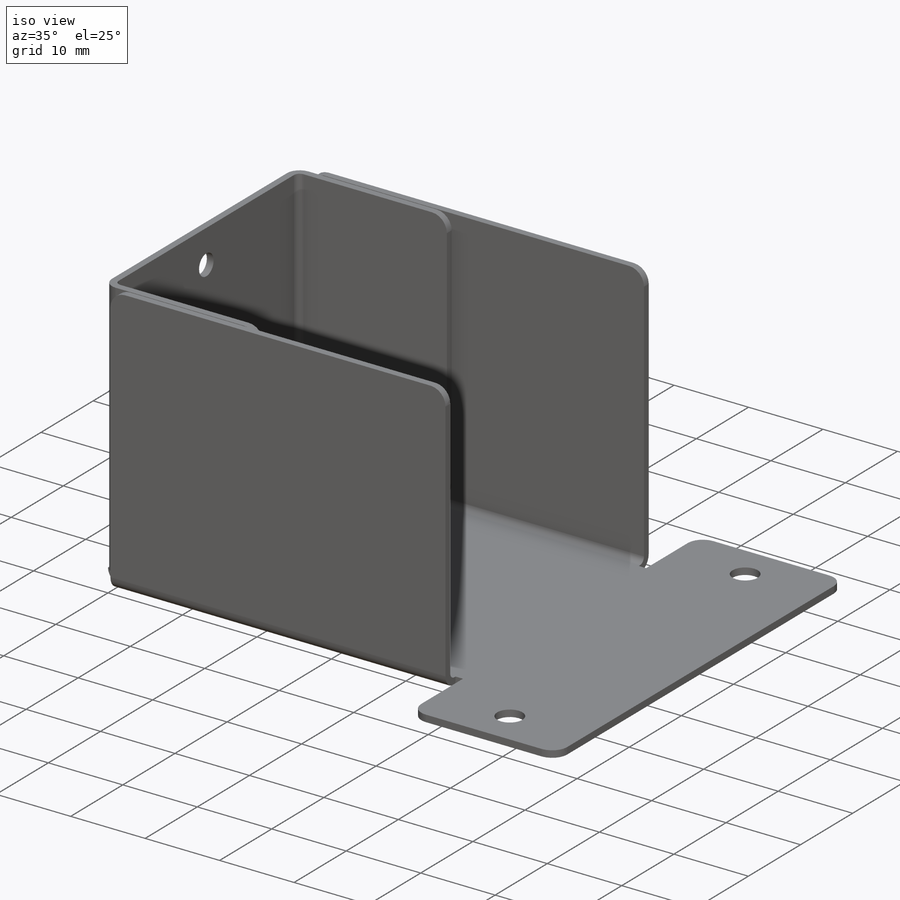
[diagram: iso view]
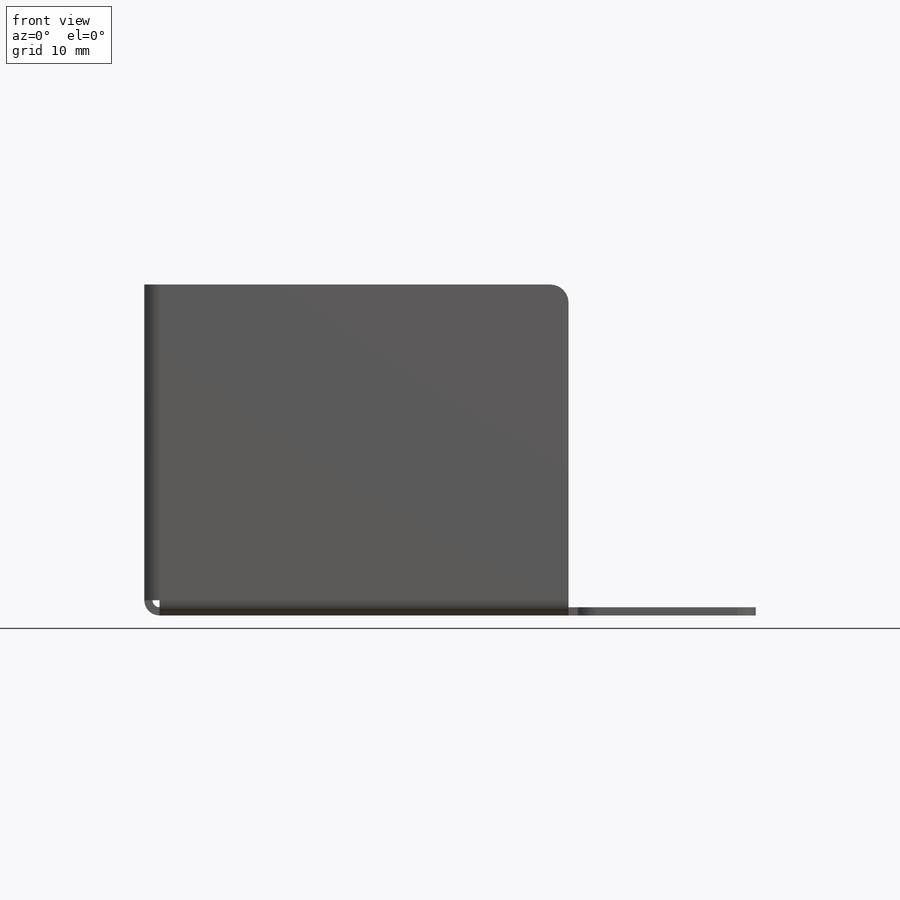
[diagram: front view]
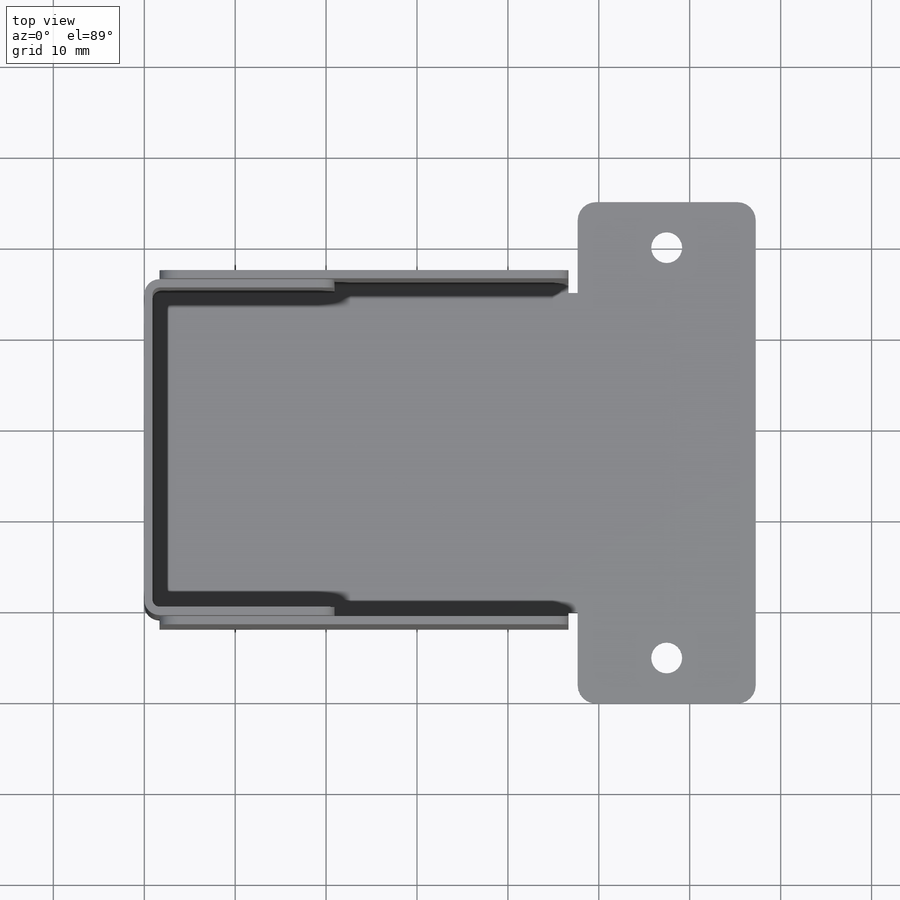
[diagram: top view]
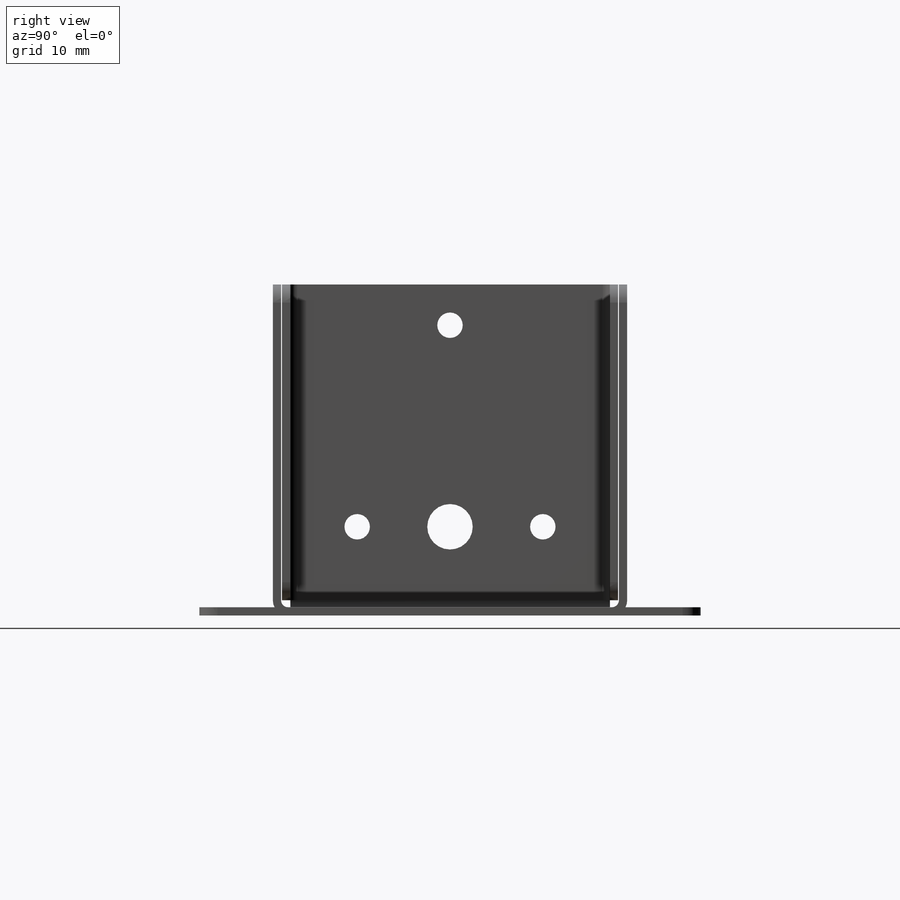
[diagram: right view]
SOLIDWORKS PART (.sldprt)
format: sldprt  version: not decoded by parser v0  size: 594,944 bytes
history: native  units: mm
features: sketch x27, sheet_metal_op x13, hole x8, cut_extrude x2, material x1, plane x1, extrude x1, fillet x1, mirror x1 + 20 further entries (+12 scaffold rows collapsed; 8 parser-record rows omitted)
feature tree (95):
  scaffold x12  (default folders/planes/origin — collapsed)
  material  "6061 Alloy"
  sketch  "Sketch1"  dims[c1.D1=~50.309408mm c1.D2=~37.203596mm c2.D1=67.26mm c2.D2=35.14mm c3.D1=0.762mm c3.D2=0.389 c3.D3=1.1938mm c3.D6=500.0mm]
  sheet_metal_op  "Base-Flange1"
  sketch  "Sketch8"  dims[c1.D1=0.762mm c1.D4=90.0deg c1.D5=1.0 c1.D8=0.38mm c1.D9=0.38mm c2.D1=0.762mm c2.D2=500.0mm c2.D3=0.0mm c2.D6=10.0mm c2.D7=35.5mm]
  sketch  "Sketch9"  dims[c1.D1=~8.061882mm c1.D2=2.8mm c1.D3=5.0mm c1.D6=2.8mm c2.D1=20.42mm c2.D4=8.85mm c2.D5=17.57mm c2.D6=~8.194442mm c3.D5=17.57mm c3.D1=10.21mm c3.D3=~28.054004mm c3.D7=22.17mm c3.D8=10.21mm c3.Edge-Flange2=0.0]
  sketch  "Sketch12"
  sheet_metal_op  "EdgeBend2"  Edge-Flange3=0
  sketch  "Sketch15"  dims[D1=45.0mm]
  sheet_metal_op  "EdgeBend3"
  plane  "Plane3"
  cut_extrude  "Motor Holes"  [1 undecoded]
  sketch  "Sketch17"  dims[c1.D1=0.76mm c1.D2=20.738mm c2.D1=1.0mm]
  extrude  "Bolt Flange"  Depth=10mm
  hole  "M3 Clearance Hole1"  Diameter=3.4mm Depth=12mm
  sketch  "Sketch19"  dims[D1=~2.10769mm]
  sketch  "Sketch18"  dims[hole-wizard template sketch: 50 standard entries collapsed; hole parameters above]
  fillet  "Fillet1"  Radius=2mm
  mirror  "Mirror7"
  sheet_metal_op  "MirrorBend7"
  sheet_metal_op  "MirrorBend8"
  sketch  "Bend-Lines1"
  sketch  "Bounding-Box1"
  sketch  "Sketch20"  dims[D1=8.0mm]
  cut_extrude  "Cut-Extrude1"  [1 undecoded]
  sheet_metal_op  "Sheet-Metal(1)"
  "Flat-Pattern(1)"
  sketch  "Bend-Lines2"
  sketch  "Bounding-Box2"
  parser-record x8  (decoder bookkeeping rows leaked as tree rows — omitted from the tree; the rows remain in map.json)
  hole  "Sheet-Metal(2)"  Diameter=0.762mm
  sheet_metal_op  "Flat-Pattern(1)"
  sketch  "Bend-Lines2"
  sketch  "Bounding-Box2"
  hole  "Sheet-Metal(3)"  Diameter=0.762mm
  sheet_metal_op  "Flat-Pattern(1)"
  sketch  "Bend-Lines2"
  sketch  "Bounding-Box2"
  "Flatten-<EdgeBend1>1"
  "Flatten-<EdgeBend2>1"
  hole  "Sheet-Metal(4)"  Diameter=0.762mm
  sheet_metal_op  "Flat-Pattern(1)"
  sketch  "Bend-Lines2"
  sketch  "Bounding-Box2"
  "Flatten-<EdgeBend1>1"
  "Flatten-<EdgeBend2>1"
  "Flatten-<EdgeBend3>1"
  hole  "Sheet-Metal(6)"  Diameter=0.762mm
  sheet_metal_op  "Flat-Pattern(1)"
  sketch  "Bend-Lines2"
  sketch  "Bounding-Box2"
  "Flatten-<EdgeBend1>1"
  "Flatten-<EdgeBend2>1"
  "Flatten-<EdgeBend3>1"
  hole  "Sheet-Metal(10)"  Diameter=0.762mm
  sheet_metal_op  "Flat-Pattern(1)"
  sketch  "Bend-Lines2"
  sketch  "Bounding-Box2"
  "Flatten-<EdgeBend1>1"
  "Flatten-<EdgeBend2>1"
  "Flatten-<EdgeBend3>1"
  "Flatten-<MirrorBend7>1"
  "Flatten-<MirrorBend8>1"
  hole  "Sheet-Metal(15)"  Diameter=0.762mm
  sheet_metal_op  "Flat-Pattern(1)"
  sketch  "Bend-Lines2"
  sketch  "Bounding-Box2"
  "Flatten-<EdgeBend1>1"
  "Flatten-<EdgeBend2>1"
  "Flatten-<EdgeBend3>1"
  hole  "Sheet-Metal(16)"  Diameter=0.762mm
  sheet_metal_op  "Flat-Pattern(1)"
  sketch  "Bend-Lines2"
  sketch  "Bounding-Box2"
  "Flatten-<EdgeBend1>1"
  "Flatten-<EdgeBend2>1"
  "Flatten-<EdgeBend3>1"
decode coverage: 19 of 53 modeling features carry decoded parameters; 20 rows unclassified (native names shown)
note: ~ marks probable driven/reference dimensions
note: 2 parameter values undecoded
note: suppression state not decoded; provenance and decode notes live in map.json
